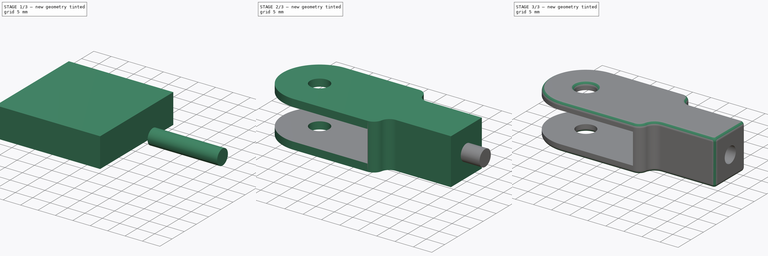
[diagram: build sequence overview — one tinted view per stage of 3, left to right]
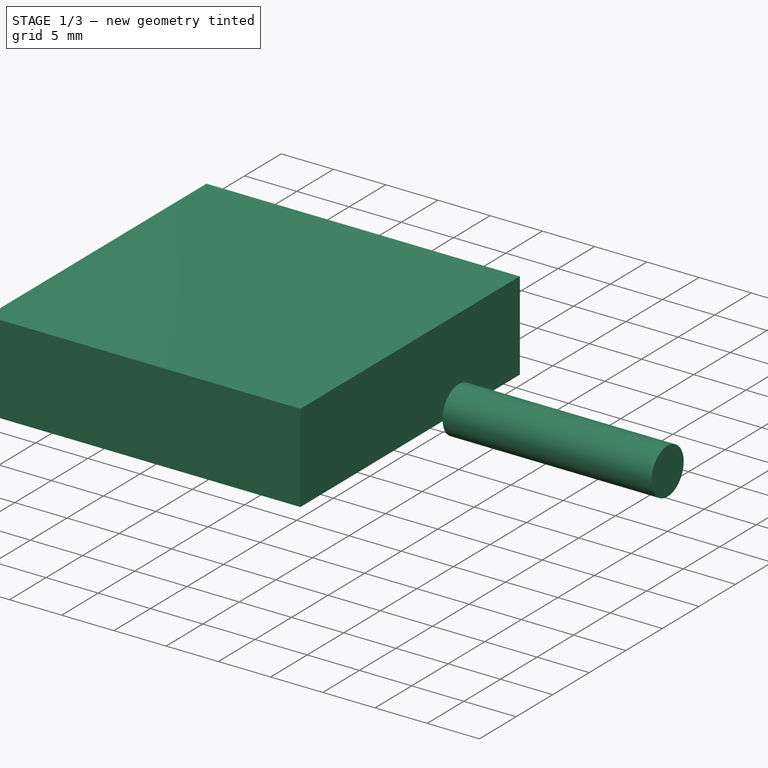
[diagram: stage 1 of 3 — iso view after this stage's code; geometry added in this stage tinted green]
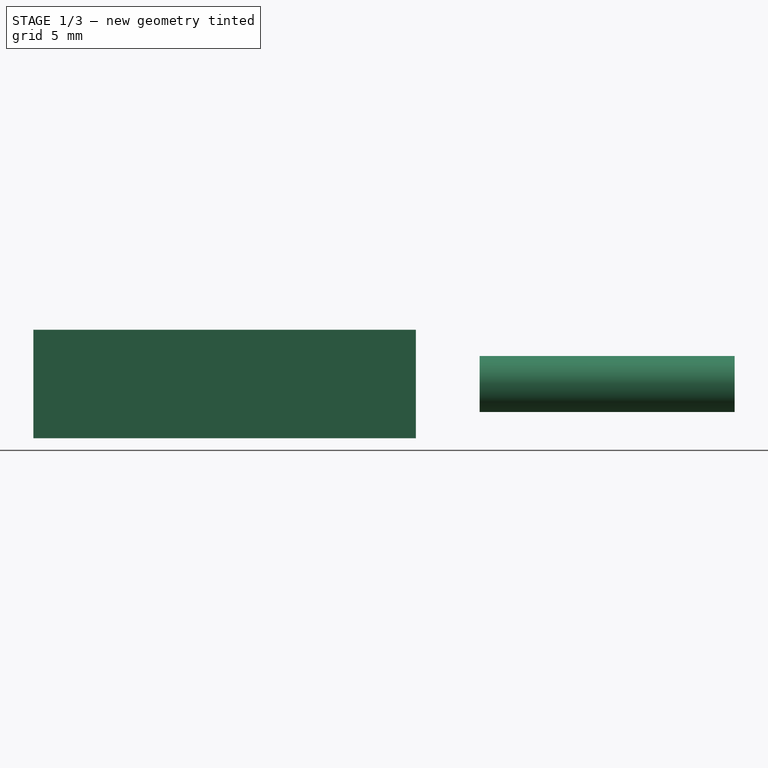
[diagram: stage 1 of 3 — front view after this stage's code; geometry added in this stage tinted green]
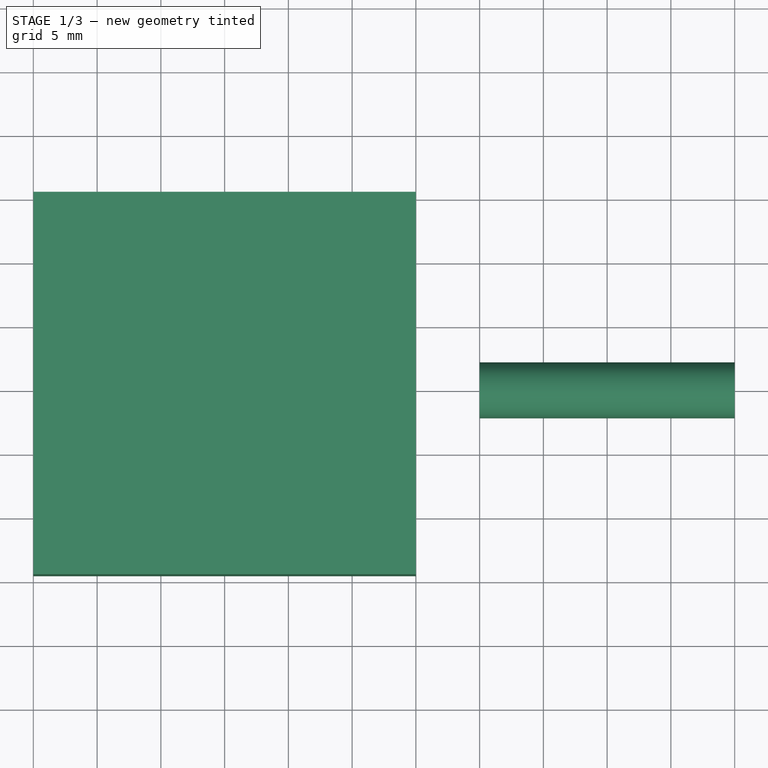
[diagram: stage 1 of 3 — top view after this stage's code; geometry added in this stage tinted green]
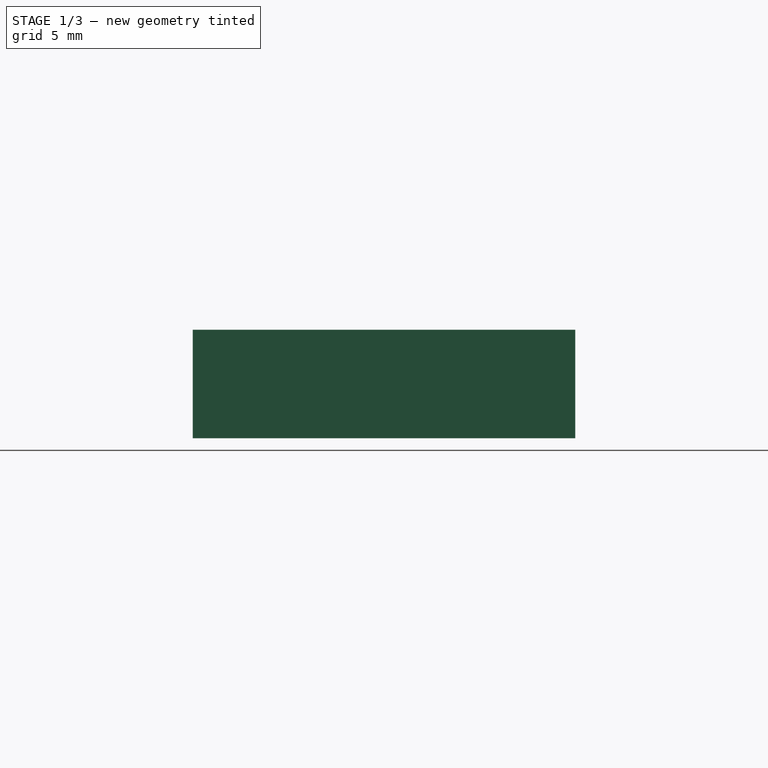
[diagram: stage 1 of 3 — right view after this stage's code; geometry added in this stage tinted green]
FCSTD DOCUMENT  (FreeCAD 0.21R33771 (Git))
Label: SFT-Mk5-Clevis
License: Public Domain
LicenseURL: https://en.wikipedia.org/wiki/Public_domain
objects: Part::Cut×2, PartDesign::CoordinateSystem×1, Sketcher::SketchObject×1, Part::Extrusion×1, Part::Box×1, Part::Cylinder×1, Part::Fillet×1, PartDesign::Line×1, App::Part×1
note: 9 computed .brp shape members not serialized (recipe doc carries the construction recipe); baked Part::Feature solids carry a one-line shape summary decoded from their .brp

FEATURE [Part::Box] Box  label="Slot Cutter"
  AttacherType = Attacher::AttachEngine3D
  Height = 8.5
  Length = 30
  Placement = pos=(-10,-14.5,-4.25) rot=(0,0,1;0rad)
  Width = 30
FEATURE [Part::Cylinder] Cylinder  label="Shaft Cutter"
  Angle = 360
  AttacherType = Attacher::AttachEngine3D
  FirstAngle = 0
  Height = 20
  Placement = pos=(45,0,0) rot=(0,-1,0;1.5708rad)
  Radius = 2.2
  SecondAngle = 0
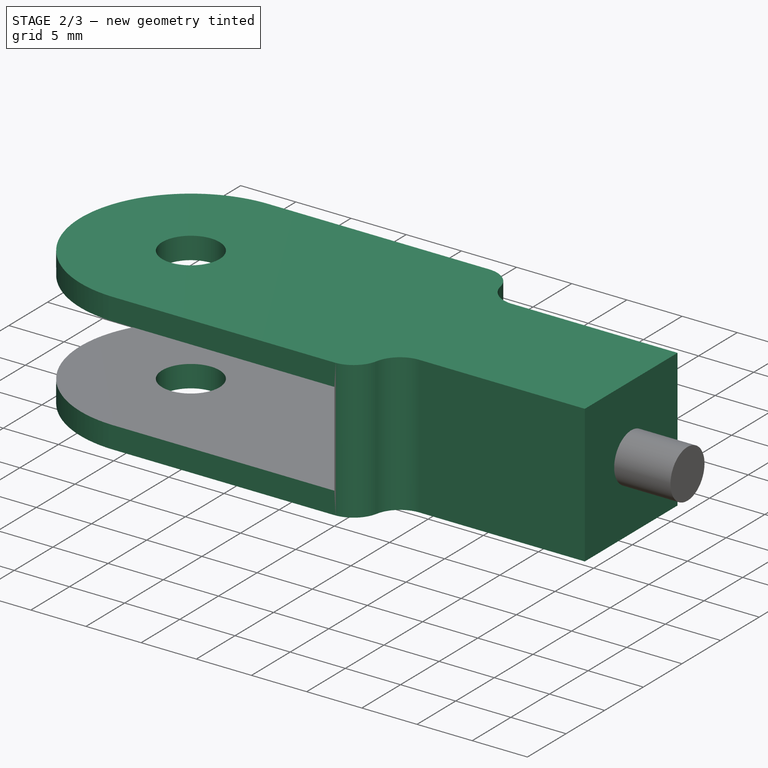
[diagram: stage 2 of 3 — iso view after this stage's code; geometry added in this stage tinted green]
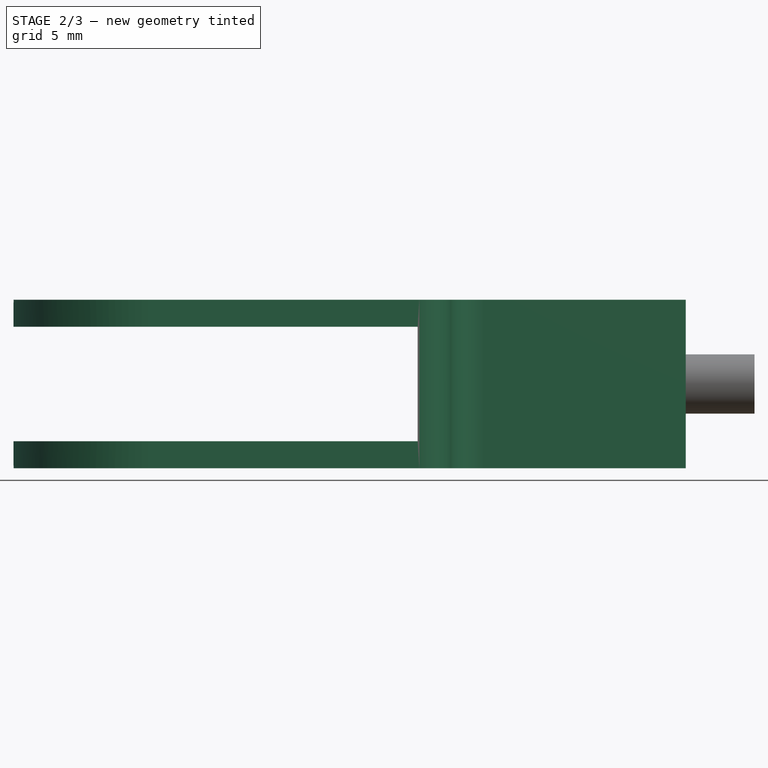
[diagram: stage 2 of 3 — front view after this stage's code; geometry added in this stage tinted green]
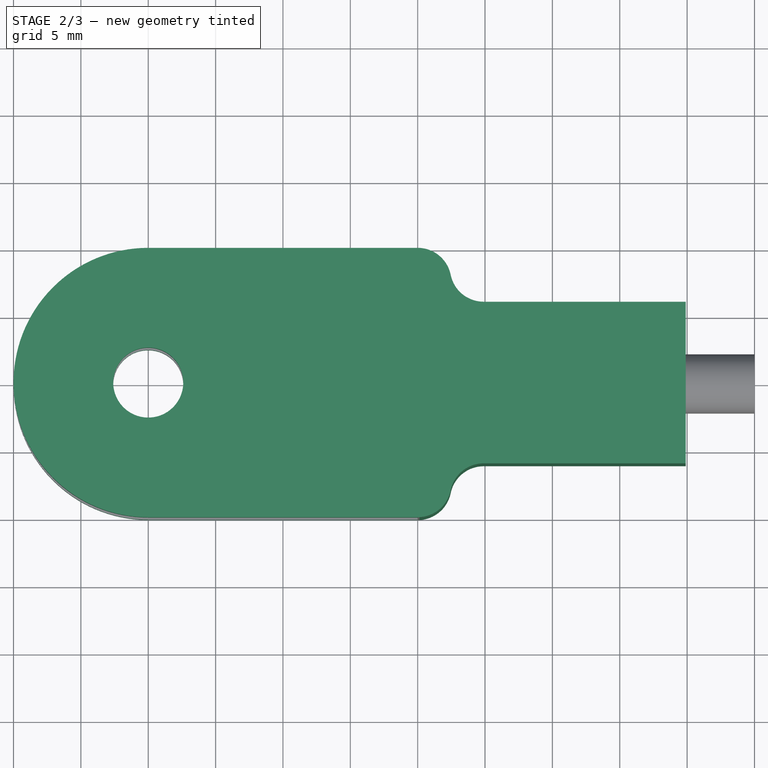
[diagram: stage 2 of 3 — top view after this stage's code; geometry added in this stage tinted green]
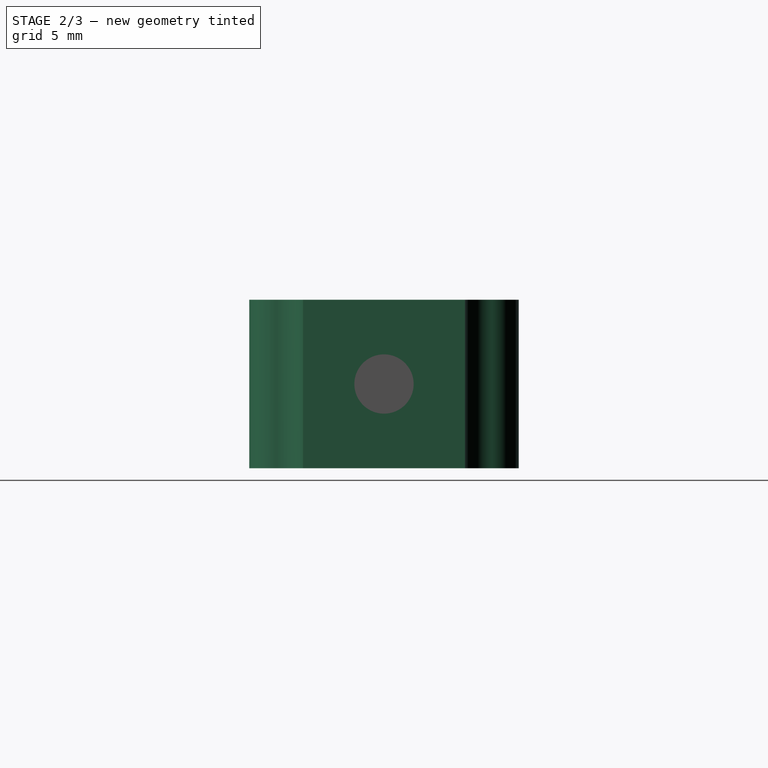
[diagram: stage 2 of 3 — right view after this stage's code; geometry added in this stage tinted green]
FEATURE [PartDesign::CoordinateSystem] LCS_Origin  label="Bellcrank AP"
  AttacherType = Attacher::AttachEngine3D
  MapMode = 2
  Support = -> [X_Axis]
FEATURE [Sketcher::SketchObject] Sketch  label="Clevis Pad Sketch"
  FullyConstrained = true
  MapMode = 5
  Support = -> [XY_Plane]
  sketch-geometry (11):
    g0: Circle CenterX=0 CenterY=0 CenterZ=0 NormalX=0 NormalY=0 NormalZ=1 AngleXU=0 Radius=2.6
    g1: ArcOfCircle CenterX=0 CenterY=0 CenterZ=0 NormalX=0 NormalY=0 NormalZ=1 AngleXU=0 Radius=10 StartAngle=1.5708 EndAngle=4.71239
    g2: LineSegment StartX=-1.8e-15 StartY=-10 StartZ=0 EndX=20 EndY=-10 EndZ=0
    g3: LineSegment StartX=6e-16 StartY=10 StartZ=0 EndX=20 EndY=10 EndZ=0
    g4: ArcOfCircle CenterX=20 CenterY=7.5 CenterZ=0 NormalX=0 NormalY=0 NormalZ=1 AngleXU=0 Radius=2.5 StartAngle=0.201358 EndAngle=1.5708
    g5: ArcOfCircle CenterX=24.899 CenterY=8.5 CenterZ=0 NormalX=0 NormalY=0 NormalZ=1 AngleXU=0 Radius=2.5 StartAngle=3.34295 EndAngle=4.71239
    g6: LineSegment StartX=24.899 StartY=6 StartZ=0 EndX=39.899 EndY=6 EndZ=0
    g7: LineSegment StartX=39.899 StartY=6 StartZ=0 EndX=39.899 EndY=-6 EndZ=0
    g8: LineSegment StartX=39.899 StartY=-6 StartZ=0 EndX=24.899 EndY=-6 EndZ=0
    g9: ArcOfCircle CenterX=20 CenterY=-7.5 CenterZ=0 NormalX=0 NormalY=0 NormalZ=1 AngleXU=0 Radius=2.5 StartAngle=4.71239 EndAngle=6.08183
    g10: ArcOfCircle CenterX=24.899 CenterY=-8.5 CenterZ=0 NormalX=0 NormalY=0 NormalZ=1 AngleXU=0 Radius=2.5 StartAngle=1.5708 EndAngle=2.94023
  constraints (30):
    c: Coincident(g0,g-1)
    c: Radius(g0) = 2.6
    c: Coincident(g1,g0)
    c: PointOnObject(g1,g-2)
    c: PointOnObject(g1,g-2)
    c: Coincident(g2,g1)
    c: Horizontal(g2)
    c: Coincident(g3,g1)
    c: Horizontal(g3)
    c: Radius(g1) = 10
    c: DistanceX(g2,g2) = 20
    c: Equal(g3,g2)
    c: Tangent(g4,g3) = 1.5708
    c: Tangent(g5,g4) = 1.5708
    c: Horizontal(g6)
    c: Radius(g4) = 2.5
    c: Equal(g5,g4)
    c: Tangent(g6,g5) = -1.5708
    c: DistanceX(g6,g6) = 15
    c: Coincident(g7,g6)
    c: Coincident(g8,g7)
    c: Horizontal(g8)
    c: Coincident(g9,g2)
    c: Equal(g10,g9)
    c: Equal(g9,g4)
    c: Equal(g8,g6)
    c: Symmetric(g6,g7,g-1)
    c: DistanceY(g6) = 6
    c: Tangent(g10,g8) = -1.5708
    c: Tangent(g10,g9) = 1.5708
FEATURE [Part::Extrusion] Extrude
  Base = -> Sketch
  Dir = (0,0,1)
  DirMode = 2
  FaceMakerClass = Part::FaceMakerBullseye
  LengthFwd = 12.5
  LengthRev = 0
  Solid = true
  Symmetric = true
FEATURE [Part::Cut] Cut
  Base = -> Extrude
  Tool = -> Box
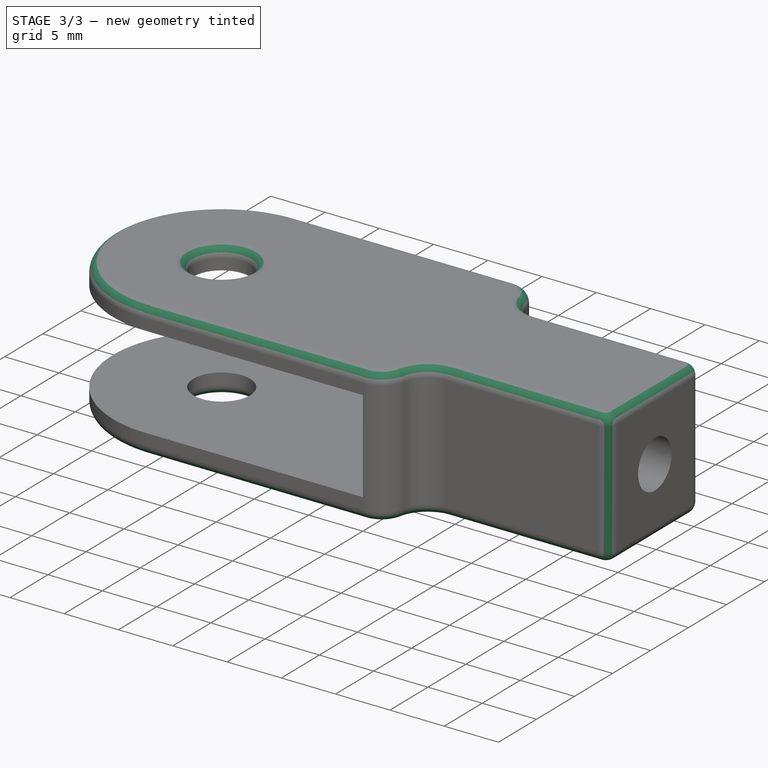
[diagram: stage 3 of 3 — iso view after this stage's code; geometry added in this stage tinted green]
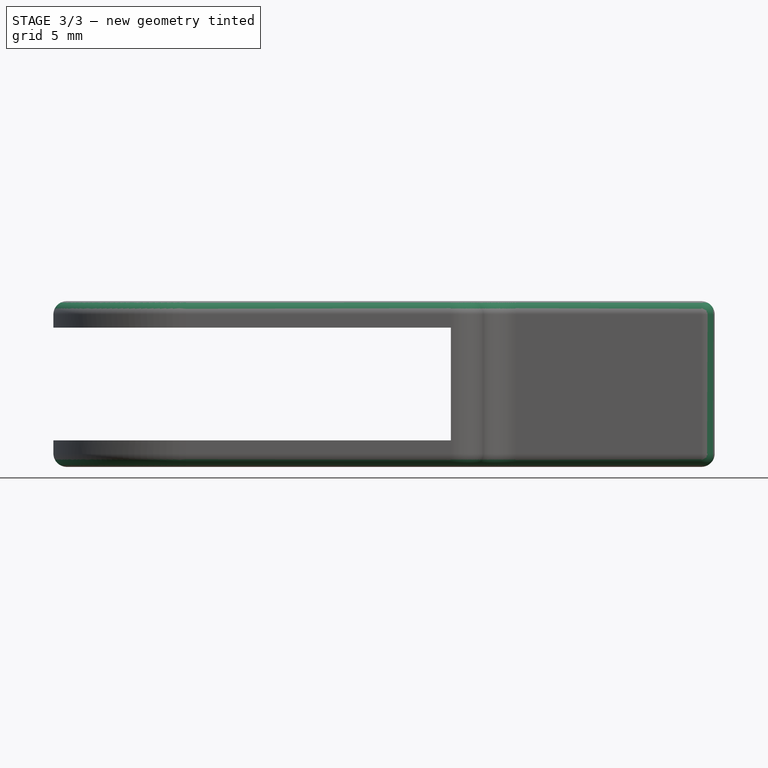
[diagram: stage 3 of 3 — front view after this stage's code; geometry added in this stage tinted green]
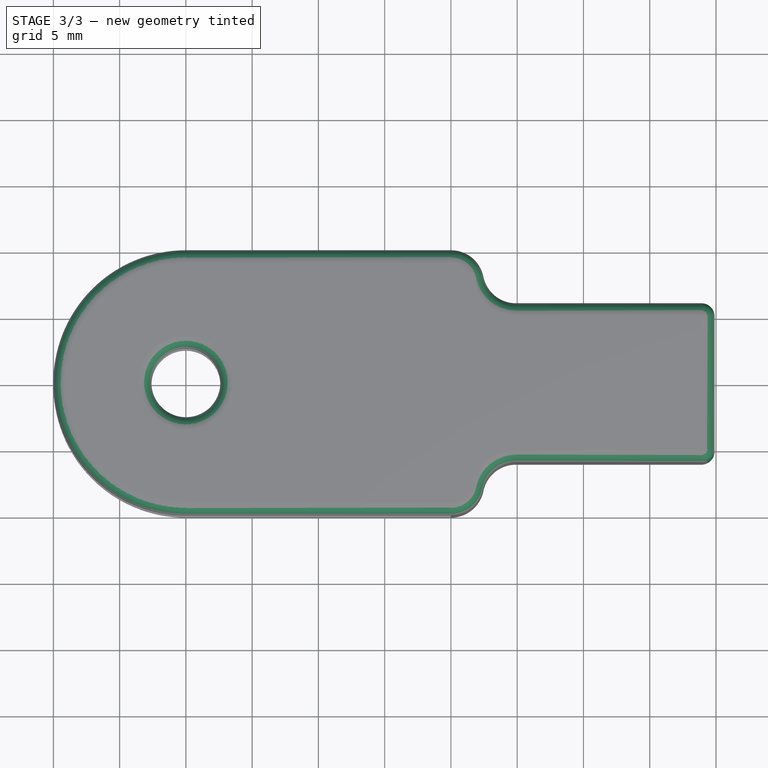
[diagram: stage 3 of 3 — top view after this stage's code; geometry added in this stage tinted green]
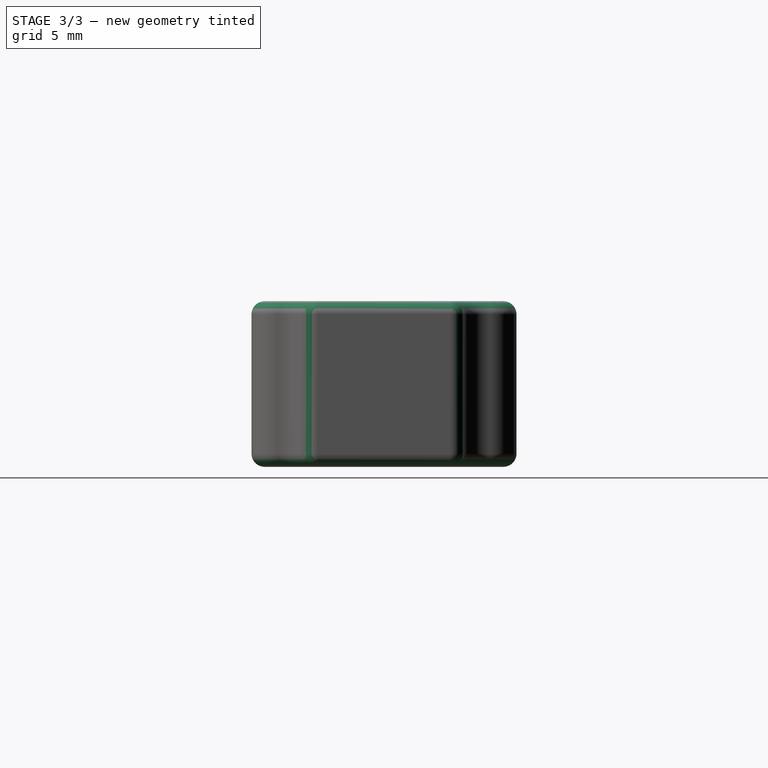
[diagram: stage 3 of 3 — right view after this stage's code; geometry added in this stage tinted green]
FEATURE [Part::Cut] Cut001
  Base = -> Cut
  Tool = -> Cylinder
FEATURE [Part::Fillet] Fillet
  Base = -> Cut001
  Edges = 24 edges r=1: [Edge1,Edge6,Edge7,Edge8,Edge9,Edge10,Edge11,Edge12,Edge13,Edge14,Edge15,Edge25,Edge27,Edge28,Edge29,Edge30,Edge31,Edge34,Edge36,Edge39,Edge43,Edge45,Edge46,Edge47]
FEATURE [PartDesign::Line] HoleAxis_1  label="Shaft AP"
  AttacherType = Attacher::AttachEngineLine
  Length = 7.04534
  MapMode = 19
  Placement = pos=(39.899,0,1.3e-15) rot=(-0.707107,0,-0.707107;3.14159rad)
  ResizeMode = 1
  Support = -> [Fillet]
FEATURE [App::Part] Clevis
  Group = -> [LCS_Origin,Sketch,Extrude,Cut,Box,Cylinder,Cut001,HoleAxis_1,Fillet]
  Origin = -> Origin
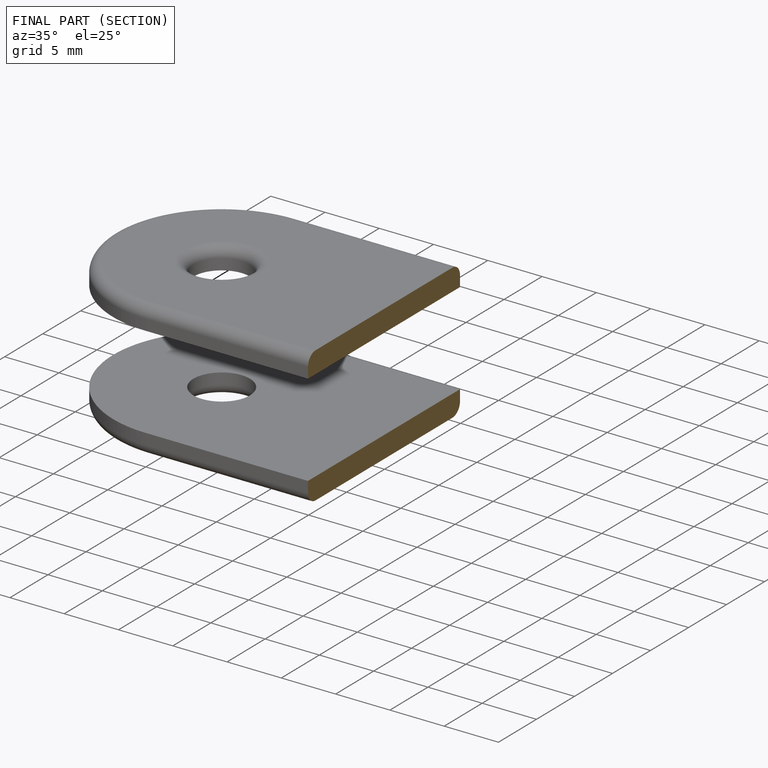
[diagram: finished part — half-section view (interior)]
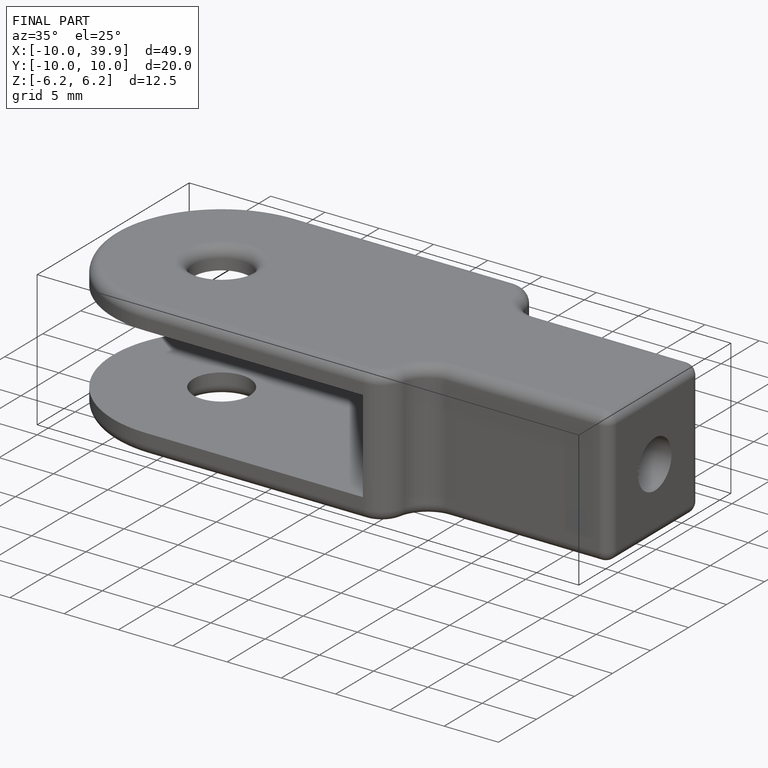
[diagram: finished part — iso view with bounding-box wireframe]
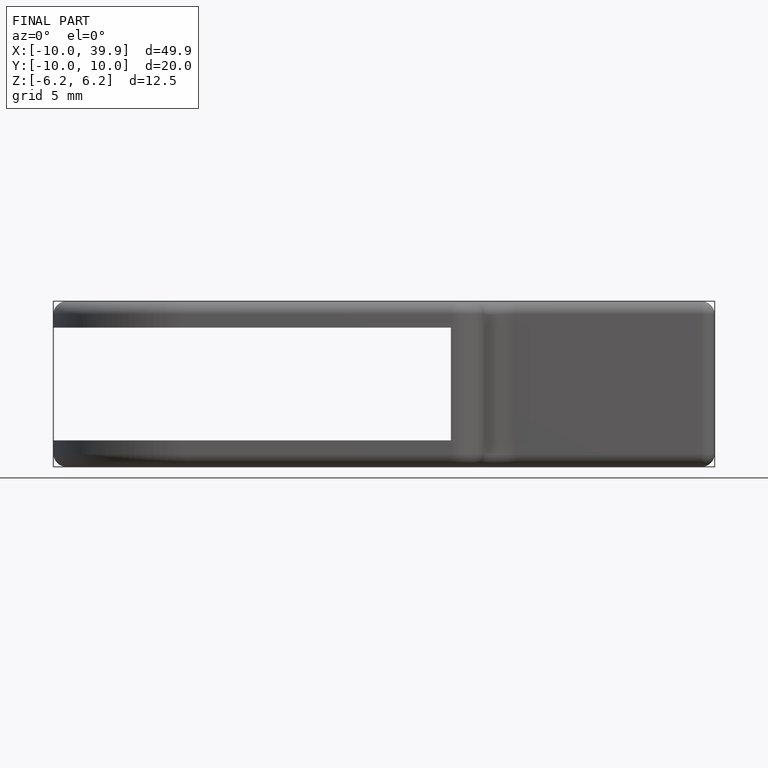
[diagram: finished part — front view with bounding-box wireframe]
